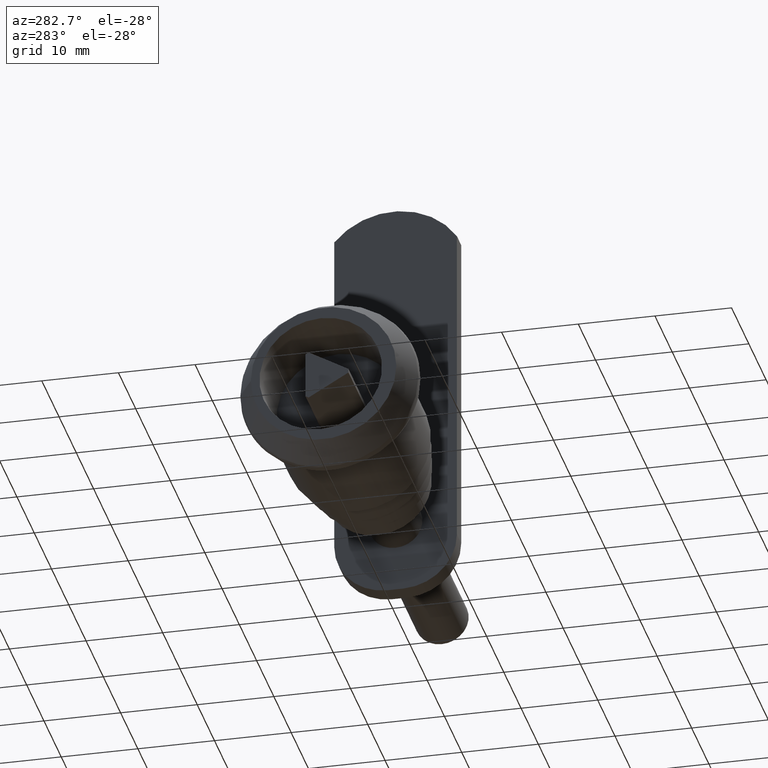
[diagram: clean part render]
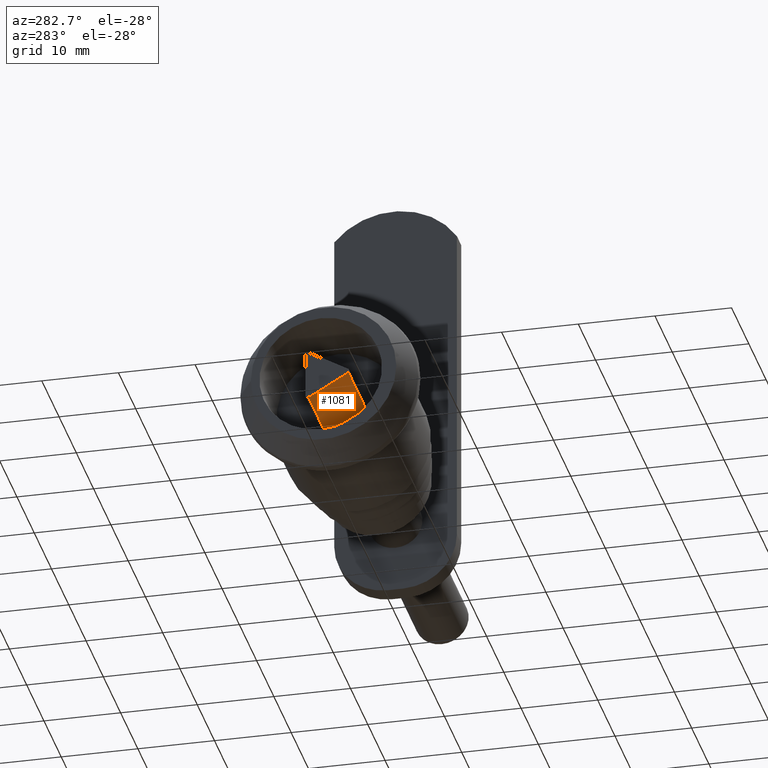
[diagram: same view with one face highlighted and labeled with its STEP entity id]
A machine part, auxiliary view. The second image highlights one B-rep face of the part: STEP entity #1081.
In plain terms, the highlighted planar face has unit normal (0, -0.5, -0.866).
Its self-contained STEP definition (entity closure, byte-faithful):
#914=CARTESIAN_POINT('',(10.0,-3.247419694618657,-0.249999999998810));
#915=VERTEX_POINT('',#914);
#922=CARTESIAN_POINT('',(10.0,1.948732728067625,-3.249999999986812));
#923=VERTEX_POINT('',#922);
#924=CARTESIAN_POINT('',(10.0,1.948732728067625,-3.249999999986812));
#925=DIRECTION('',(0.0,-0.866025403784457,0.499999999999969));
#926=VECTOR('',#925,5.999999999976378);
#927=LINE('',#924,#926);
#928=EDGE_CURVE('',#923,#915,#927,.T.);
#1041=CARTESIAN_POINT('',(0.0,1.948732728067625,-3.249999999986812));
#1042=VERTEX_POINT('',#1041);
#1043=CARTESIAN_POINT('',(10.0,1.948732728067625,-3.249999999986812));
#1044=DIRECTION('',(-1.0,0.0,0.0));
#1045=VECTOR('',#1044,10.0);
#1046=LINE('',#1043,#1045);
#1047=EDGE_CURVE('',#923,#1042,#1046,.T.);
#1058=CARTESIAN_POINT('',(10.0,1.948732728067625,-3.249999999986812));
#1059=DIRECTION('',(0.0,-0.499999999999969,-0.866025403784457));
#1060=DIRECTION('',(0.0,-0.866025403784457,0.499999999999969));
#1061=AXIS2_PLACEMENT_3D('',#1058,#1059,#1060);
#1062=PLANE('',#1061);
#1063=ORIENTED_EDGE('',*,*,#1047,.F.);
#1064=ORIENTED_EDGE('',*,*,#928,.T.);
#1065=CARTESIAN_POINT('',(0.0,-3.247419694618657,-0.249999999998810));
#1066=VERTEX_POINT('',#1065);
#1067=CARTESIAN_POINT('',(10.0,-3.247419694618657,-0.249999999998810));
#1068=DIRECTION('',(-1.0,0.0,0.0));
#1069=VECTOR('',#1068,10.0);
#1070=LINE('',#1067,#1069);
#1071=EDGE_CURVE('',#915,#1066,#1070,.T.);
#1072=ORIENTED_EDGE('',*,*,#1071,.T.);
#1073=CARTESIAN_POINT('',(0.0,1.948732728067625,-3.249999999986812));
#1074=DIRECTION('',(0.0,-0.866025403784457,0.499999999999969));
#1075=VECTOR('',#1074,5.999999999976378);
#1076=LINE('',#1073,#1075);
#1077=EDGE_CURVE('',#1042,#1066,#1076,.T.);
#1078=ORIENTED_EDGE('',*,*,#1077,.F.);
#1079=EDGE_LOOP('',(#1063,#1064,#1072,#1078));
#1080=FACE_OUTER_BOUND('',#1079,.T.);
#1081=ADVANCED_FACE('',(#1080),#1062,.T.);